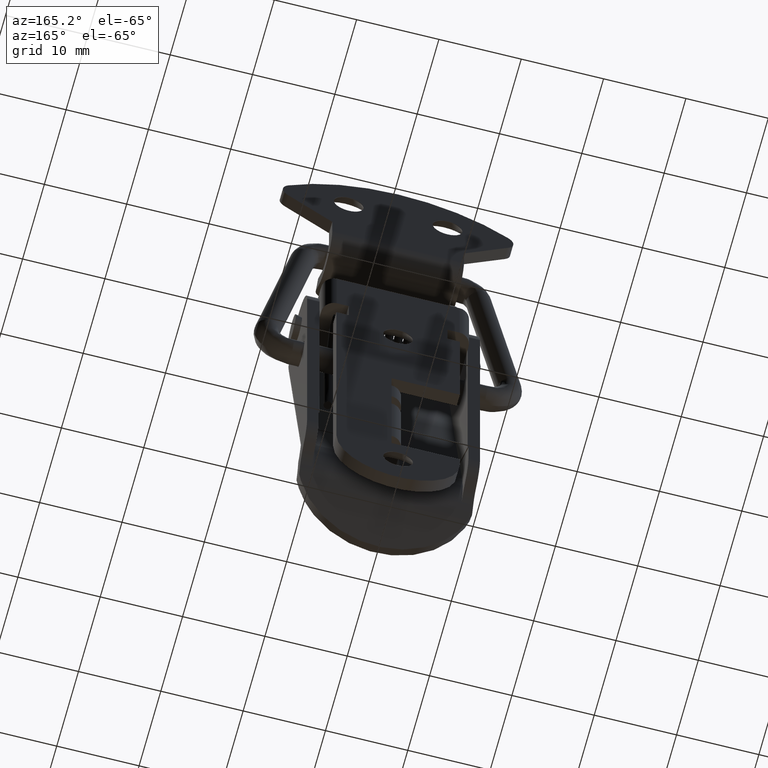
[diagram: clean part render]
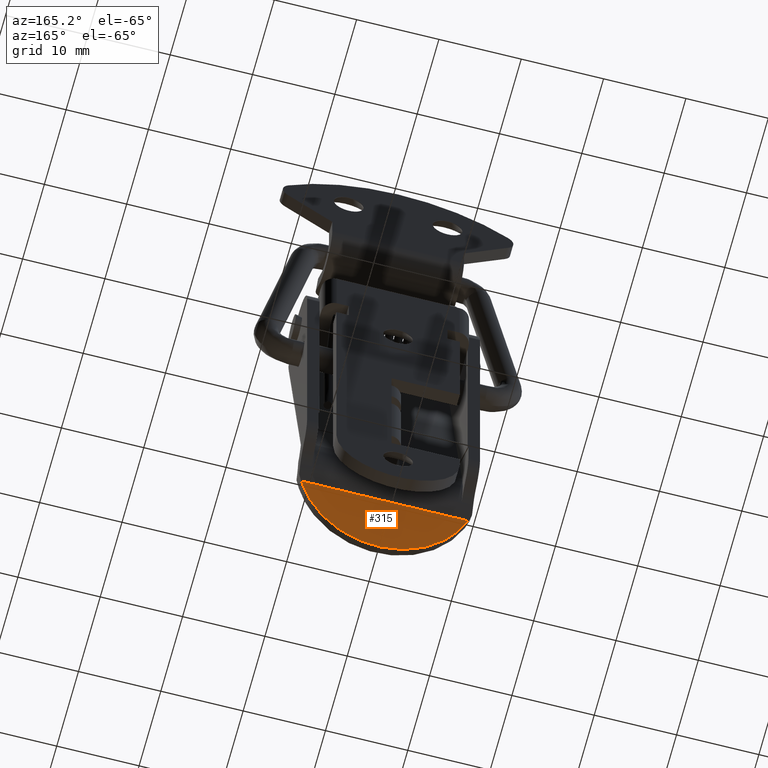
[diagram: same view with one face highlighted and labeled with its STEP entity id]
A machine part, auxiliary view. The second image highlights one B-rep face of the part: STEP entity #315.
In plain terms, the highlighted planar face has unit normal (0, 0.8788, -0.4771).
Its self-contained STEP definition (entity closure, byte-faithful):
#315=ADVANCED_FACE('',(#992),#991,.T.);
#991=PLANE('',#32004);
#992=FACE_OUTER_BOUND('',#32005,.T.);
#32001=CARTESIAN_POINT('',(-2.50127383619E+00,-1.21813293080E+01,-5.56306136109E+01));
#32002=DIRECTION('',(8.78844438630E-01,0.00000000000E+00,-4.77108428651E-01));
#32003=DIRECTION('',(-4.77108428651E-01,0.00000000000E+00,-8.78844438630E-01));
#32004=AXIS2_PLACEMENT_3D('',#32001,#32002,#32003);
#32005=EDGE_LOOP('',(#34110,#34111));
#34110=ORIENTED_EDGE('',*,*,#34917,.F.);
#34111=ORIENTED_EDGE('',*,*,#34899,.T.);
#34899=EDGE_CURVE('',#36384,#36377,#36385,.T.);
#34917=EDGE_CURVE('',#36384,#36377,#36505,.T.);
#36377=VERTEX_POINT('',#39555);
#36384=VERTEX_POINT('',#39560);
#36385=(BOUNDED_CURVE() B_SPLINE_CURVE(2,(#39561,#39562,#39563,#39564,#39565),.UNSPECIFIED.,.F.,.F.) B_SPLINE_CURVE_WITH_KNOTS((3,2,3),(0.00000000000E+00,5.00000000000E-01,1.00000000000E+00),.UNSPECIFIED.) CURVE() GEOMETRIC_REPRESENTATION_ITEM() RATIONAL_B_SPLINE_CURVE((1.00000000000E+00,8.32229628562E-01,1.00000000000E+00,8.32229628562E-01,1.00000000000E+00)) REPRESENTATION_ITEM('') );
#36505=LINE('',#39657,#39658);
#39555=CARTESIAN_POINT('',(-2.82451248785E+00,1.01511077567E+01,-5.62260264642E+01));
#39560=CARTESIAN_POINT('',(-2.82451248785E+00,-1.01511077567E+01,-5.62260264642E+01));
#39561=CARTESIAN_POINT('',(-2.82451248785E+00,-1.01511077567E+01,-5.62260264642E+01));
#39562=CARTESIAN_POINT('',(-6.05689900000E+00,-7.32819632660E+00,-6.21801550000E+01));
#39563=CARTESIAN_POINT('',(-6.05689900000E+00,-5.50818600000E-14,-6.21801550000E+01));
#39564=CARTESIAN_POINT('',(-6.05689900000E+00,7.32819632660E+00,-6.21801550000E+01));
#39565=CARTESIAN_POINT('',(-2.82451248785E+00,1.01511077567E+01,-5.62260264642E+01));
#39657=CARTESIAN_POINT('',(-2.82451248785E+00,-1.01511077567E+01,-5.62260264642E+01));
#39658=VECTOR('',#39659,2.03022155134E+01);
#39659=DIRECTION('',(0.00000000000E+00,1.00000000000E+00,0.00000000000E+00));